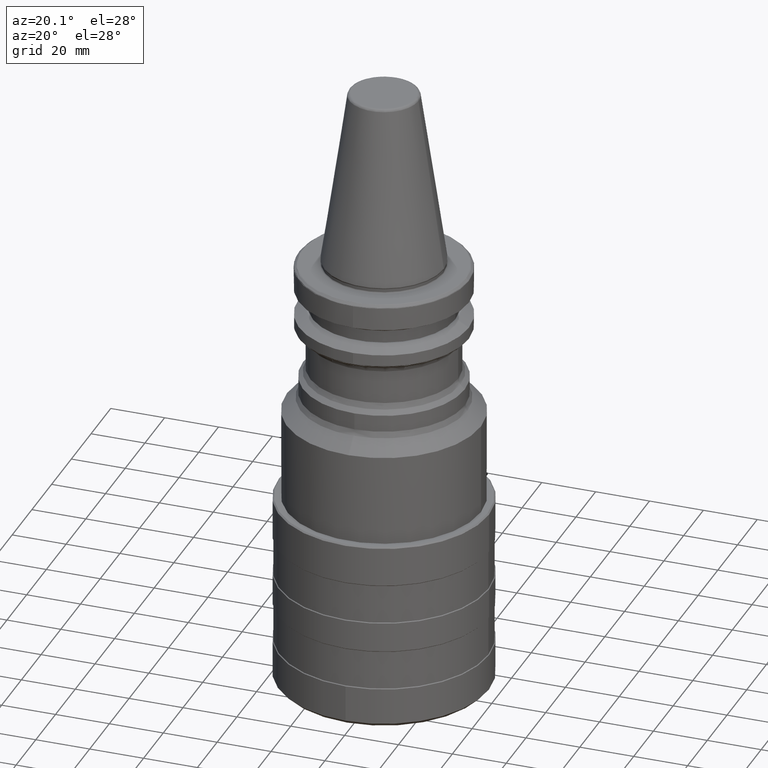
[diagram: clean part render]
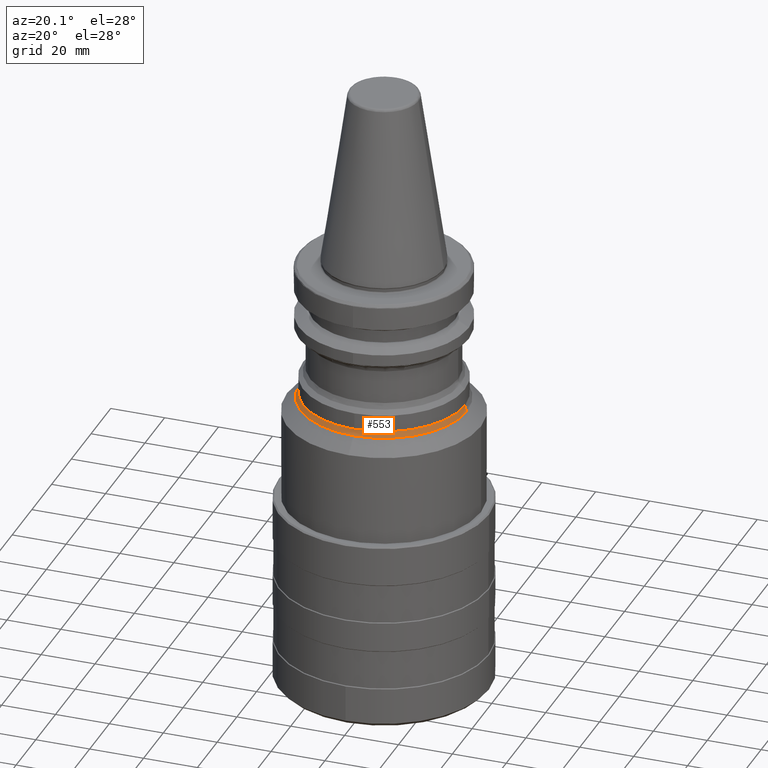
[diagram: same view with one face highlighted and labeled with its STEP entity id]
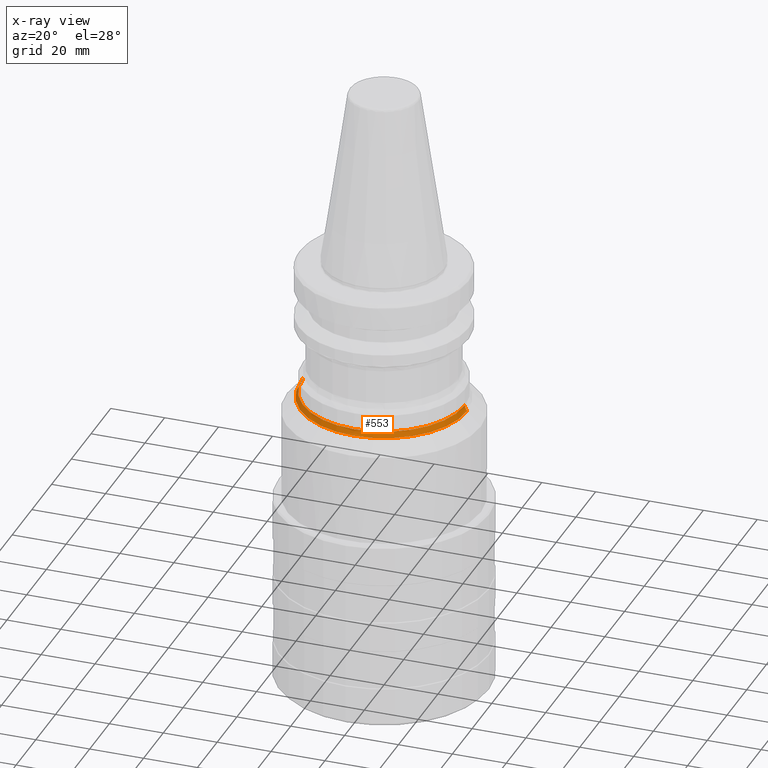
[diagram: x-ray of the same camera — body ghosted, the highlighted face saturated]
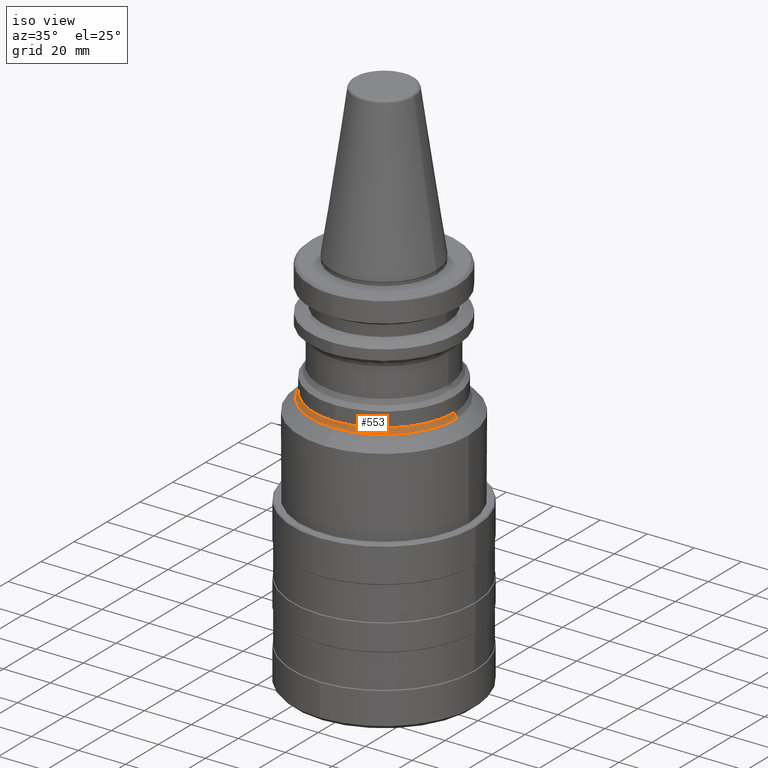
[diagram: same view with one face highlighted and labeled with its STEP entity id]
A machine part, auxiliary view. The second image highlights one B-rep face of the part: STEP entity #553.
The next image is the same camera in x-ray: the body ghosted, the highlighted face saturated — about 0% of this face is hidden behind the body in this view.
A second angle (iso view) of the same face is appended — the face is thin or edge-on in the first view.
In plain terms, the highlighted face is a freeform B-spline surface patch.
Its self-contained STEP definition (entity closure, byte-faithful):
#32 = CIRCLE ( 'NONE', #131, 30.87867965600003500 ) ;
#121 = ORIENTED_EDGE ( 'NONE', *, *, #2245, .F. ) ;
#131 = AXIS2_PLACEMENT_3D ( 'NONE', #1688, #1683, #1679 ) ;
#192 = EDGE_CURVE ( 'NONE', #3059, #844, #2970, .T. ) ;
#199 = CARTESIAN_POINT ( 'NONE',  ( -30.87867965602106700, -9.242537291065391200E-010, -54.57867965597899500 ) ) ;
#236 = ORIENTED_EDGE ( 'NONE', *, *, #1875, .F. ) ;
#283 = AXIS2_PLACEMENT_3D ( 'NONE', #3026, #3028, #3031 ) ;
#342 =( BOUNDED_CURVE ( )  B_SPLINE_CURVE ( 3, ( #1624, #1632, #2104, #1619 ),
 .UNSPECIFIED., .F., .F. ) 
 B_SPLINE_CURVE_WITH_KNOTS ( ( 4, 4 ),
 ( 0.1044804449999957600, 0.8955195550775066900 ),
 .UNSPECIFIED. ) 
 CURVE ( )  GEOMETRIC_REPRESENTATION_ITEM ( )  RATIONAL_B_SPLINE_CURVE ( ( 0.9777428142640041100, 0.9281253209182722700, 0.9281253209231337100, 0.9777428142785880000 ) ) 
 REPRESENTATION_ITEM ( '' )  );
#367 = CIRCLE ( 'NONE', #430, 30.87867965600003500 ) ;
#414 = CARTESIAN_POINT ( 'NONE',  ( 30.87867965602108100, -3.166662534041799100E-009, -54.57867965597900900 ) ) ;
#430 = AXIS2_PLACEMENT_3D ( 'NONE', #1160, #1153, #1150 ) ;
#476 = EDGE_CURVE ( 'NONE', #2442, #1184, #342, .T. ) ;
#553 = ADVANCED_FACE ( 'NONE', ( #2448 ), #1866, .F. ) ;
#558 = ORIENTED_EDGE ( 'NONE', *, *, #192, .T. ) ;
#751 = ORIENTED_EDGE ( 'NONE', *, *, #784, .F. ) ;
#784 = EDGE_CURVE ( 'NONE', #2442, #1434, #2771, .T. ) ;
#844 = VERTEX_POINT ( 'NONE', #932 ) ;
#896 = CIRCLE ( 'NONE', #283, 29.99999999990572900 ) ;
#932 = CARTESIAN_POINT ( 'NONE',  ( 29.99999999990572500, -3.209883240655479900E-030, -52.45735931377881700 ) ) ;
#960 = DIRECTION ( 'NONE',  ( 0.0000000000000000000, -1.000000000000000000, 2.312964634643010800E-016 ) ) ;
#965 = DIRECTION ( 'NONE',  ( -0.0000000000000000000, 2.312964634643011800E-016, 1.000000000000000000 ) ) ;
#967 = CARTESIAN_POINT ( 'NONE',  ( 0.0000000000000000000, 0.0000000000000000000, -52.45735931377884500 ) ) ;
#1150 = DIRECTION ( 'NONE',  ( 0.0000000000000000000, 1.000000000000000000, 0.0000000000000000000 ) ) ;
#1153 = DIRECTION ( 'NONE',  ( 0.0000000000000000000, 1.123573608264520200E-016, -1.000000000000000000 ) ) ;
#1160 = CARTESIAN_POINT ( 'NONE',  ( 0.0000000000000000000, 3.466673899897024500E-030, -54.57867965600003400 ) ) ;
#1184 = VERTEX_POINT ( 'NONE', #199 ) ;
#1221 = CARTESIAN_POINT ( 'NONE',  ( -29.99999999990572500, -2.251733093319820400E-026, -52.45735931371390100 ) ) ;
#1372 = CARTESIAN_POINT ( 'NONE',  ( 30.01498750400000400, 0.0000000000000000000, -52.15785906299998900 ) ) ;
#1374 = CARTESIAN_POINT ( 'NONE',  ( 30.01498750400001500, -60.02997500800002900, -52.15785906299998900 ) ) ;
#1378 = CARTESIAN_POINT ( 'NONE',  ( -30.01498750400001500, -60.02997500800002900, -52.15785906299998900 ) ) ;
#1383 = CARTESIAN_POINT ( 'NONE',  ( -30.01498750400000400, 0.0000000000000000000, -52.15785906299998900 ) ) ;
#1388 = CARTESIAN_POINT ( 'NONE',  ( 29.91241022599999900, 0.0000000000000000000, -53.18021032200000100 ) ) ;
#1390 = CARTESIAN_POINT ( 'NONE',  ( 29.91241022600000200, -59.82482045199999000, -53.18021032200000800 ) ) ;
#1395 = CARTESIAN_POINT ( 'NONE',  ( -29.91241022600000200, -59.82482045199999000, -53.18021032200000800 ) ) ;
#1399 = CARTESIAN_POINT ( 'NONE',  ( -29.91241022599999900, 0.0000000000000000000, -53.18021032200000100 ) ) ;
#1404 = CARTESIAN_POINT ( 'NONE',  ( 30.30561148300000000, 0.0000000000000000000, -54.12948213000000700 ) ) ;
#1405 = CARTESIAN_POINT ( 'NONE',  ( 30.30561148300000300, -60.61122296600000700, -54.12948213000000700 ) ) ;
#1407 = CARTESIAN_POINT ( 'NONE',  ( -30.30561148300000300, -60.61122296600000700, -54.12948213000000700 ) ) ;
#1413 = CARTESIAN_POINT ( 'NONE',  ( -30.30561148300000000, 0.0000000000000000000, -54.12948213000000700 ) ) ;
#1415 = CARTESIAN_POINT ( 'NONE',  ( 31.10105608000001000, 0.0000000000000000000, -54.77986054800001600 ) ) ;
#1418 = CARTESIAN_POINT ( 'NONE',  ( 31.10105608000000300, -62.20211216000001300, -54.77986054800000200 ) ) ;
#1434 = VERTEX_POINT ( 'NONE', #2914 ) ;
#1483 = CARTESIAN_POINT ( 'NONE',  ( -31.10105608000001000, 0.0000000000000000000, -54.77986054800001600 ) ) ;
#1484 = CARTESIAN_POINT ( 'NONE',  ( -31.10105608000000300, -62.20211216000001300, -54.77986054800000200 ) ) ;
#1501 = ORIENTED_EDGE ( 'NONE', *, *, #476, .T. ) ;
#1515 = CARTESIAN_POINT ( 'NONE',  ( 3.781547620261694100E-015, -30.87867965600004200, -54.57867965600003400 ) ) ;
#1619 = CARTESIAN_POINT ( 'NONE',  ( -30.87867965602106700, -9.242537291065391200E-010, -54.57867965597899500 ) ) ;
#1624 = CARTESIAN_POINT ( 'NONE',  ( -29.99999999990572500, -2.251733093319820400E-026, -52.45735931371390100 ) ) ;
#1632 = CARTESIAN_POINT ( 'NONE',  ( -30.00000000026372100, 0.0000000000000000000, -53.26364261970885400 ) ) ;
#1679 = DIRECTION ( 'NONE',  ( 0.0000000000000000000, 1.000000000000000000, 0.0000000000000000000 ) ) ;
#1683 = DIRECTION ( 'NONE',  ( 0.0000000000000000000, 1.123573608264520200E-016, -1.000000000000000000 ) ) ;
#1688 = CARTESIAN_POINT ( 'NONE',  ( 0.0000000000000000000, 3.466673899897024500E-030, -54.57867965600003400 ) ) ;
#1813 = CARTESIAN_POINT ( 'NONE',  ( 30.30855126306340000, 0.0000000000000000000, -54.00855126323990900 ) ) ;
#1866 =( BOUNDED_SURFACE ( )  B_SPLINE_SURFACE ( 3, 3, ( 
 ( #1483, #1484, #1418, #1415 ),
 ( #1413, #1407, #1405, #1404 ),
 ( #1399, #1395, #1390, #1388 ),
 ( #1383, #1378, #1374, #1372 ) ),
 .UNSPECIFIED., .F., .F., .F. ) 
 B_SPLINE_SURFACE_WITH_KNOTS ( ( 4, 4 ),
 ( 4, 4 ),
 ( 0.0000000000000000000, 1.000000000000000000 ),
 ( 0.0000000000000000000, 1.000000000000000000 ),
 .UNSPECIFIED. ) 
 GEOMETRIC_REPRESENTATION_ITEM ( )  RATIONAL_B_SPLINE_SURFACE ( (
 ( 1.000000000000000000, 0.3333333333333330400, 0.3333333333333330400, 1.000000000000000000),
 ( 0.9207062590111350100, 0.3069020863370451300, 0.3069020863370451300, 0.9207062590111350100),
 ( 0.9207062590111350100, 0.3069020863370451300, 0.3069020863370451300, 0.9207062590111350100),
 ( 1.000000000000000000, 0.3333333333333330400, 0.3333333333333330400, 1.000000000000000000) ) ) 
 REPRESENTATION_ITEM ( '' )  SURFACE ( )  );
#1875 = EDGE_CURVE ( 'NONE', #1434, #844, #896, .T. ) ;
#1901 = CARTESIAN_POINT ( 'NONE',  ( 30.00000000026372500, 0.0000000000000000000, -53.26364261970887500 ) ) ;
#2104 = CARTESIAN_POINT ( 'NONE',  ( -30.30855126306339600, 0.0000000000000000000, -54.00855126323989500 ) ) ;
#2245 = EDGE_CURVE ( 'NONE', #3059, #2297, #32, .T. ) ;
#2297 = VERTEX_POINT ( 'NONE', #1515 ) ;
#2442 = VERTEX_POINT ( 'NONE', #1221 ) ;
#2448 = FACE_OUTER_BOUND ( 'NONE', #2600, .T. ) ;
#2465 = EDGE_CURVE ( 'NONE', #2297, #1184, #367, .T. ) ;
#2600 = EDGE_LOOP ( 'NONE', ( #1501, #3027, #121, #558, #236, #751 ) ) ;
#2659 = CARTESIAN_POINT ( 'NONE',  ( 30.87867965602108100, -3.166662534041799100E-009, -54.57867965597900900 ) ) ;
#2771 = CIRCLE ( 'NONE', #2933, 29.99999999990572900 ) ;
#2914 = CARTESIAN_POINT ( 'NONE',  ( 0.0000000000000000000, -30.00000000000000000, -52.45735931377883800 ) ) ;
#2933 = AXIS2_PLACEMENT_3D ( 'NONE', #967, #965, #960 ) ;
#2970 =( BOUNDED_CURVE ( )  B_SPLINE_CURVE ( 3, ( #2659, #1813, #1901, #3102 ),
 .UNSPECIFIED., .F., .F. ) 
 B_SPLINE_CURVE_WITH_KNOTS ( ( 4, 4 ),
 ( 0.1044804449224887000, 0.8955195550000043500 ),
 .UNSPECIFIED. ) 
 CURVE ( )  GEOMETRIC_REPRESENTATION_ITEM ( )  RATIONAL_B_SPLINE_CURVE ( ( 0.9777428142785887800, 0.9281253209231334900, 0.9281253209182719300, 0.9777428142640041100 ) ) 
 REPRESENTATION_ITEM ( '' )  );
#3026 = CARTESIAN_POINT ( 'NONE',  ( 0.0000000000000000000, 0.0000000000000000000, -52.45735931377884500 ) ) ;
#3027 = ORIENTED_EDGE ( 'NONE', *, *, #2465, .F. ) ;
#3028 = DIRECTION ( 'NONE',  ( -0.0000000000000000000, 2.312964634643011800E-016, 1.000000000000000000 ) ) ;
#3031 = DIRECTION ( 'NONE',  ( 0.0000000000000000000, -1.000000000000000000, 2.312964634643010800E-016 ) ) ;
#3059 = VERTEX_POINT ( 'NONE', #414 ) ;
#3102 = CARTESIAN_POINT ( 'NONE',  ( 29.99999999990572500, -3.209883240655479900E-030, -52.45735931377882400 ) ) ;